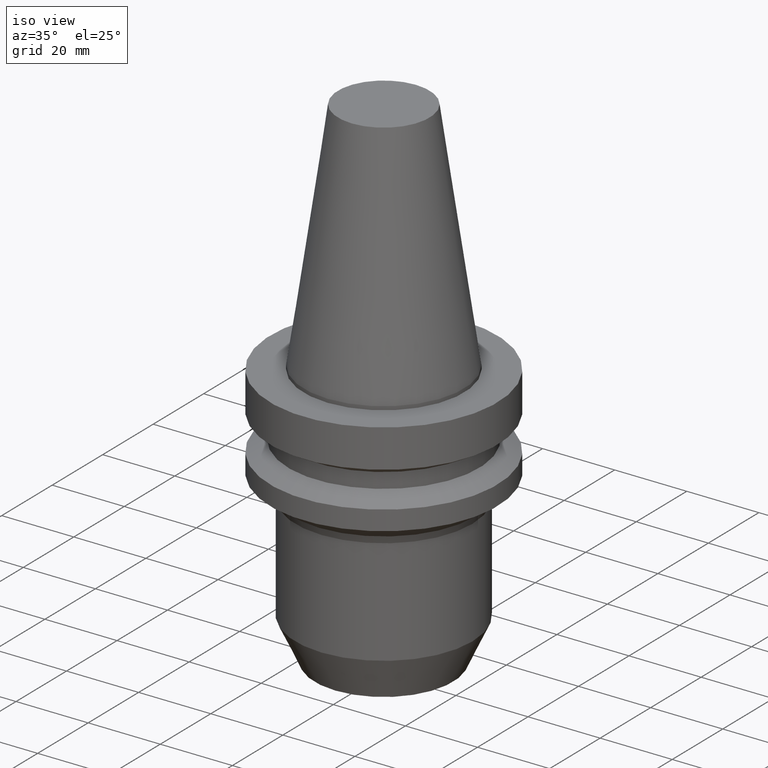
[diagram: clean part render]
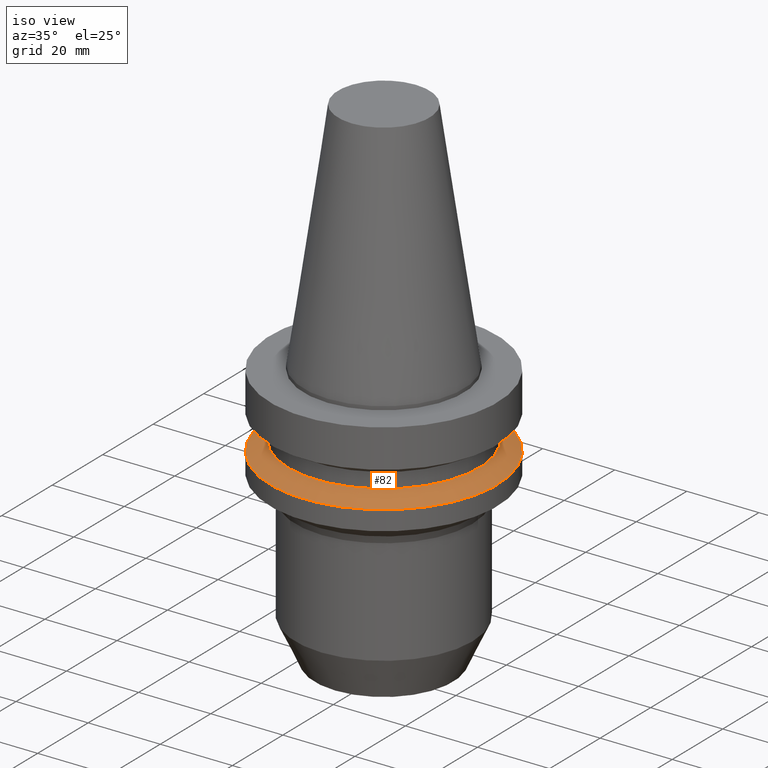
[diagram: same view with one face highlighted and labeled with its STEP entity id]
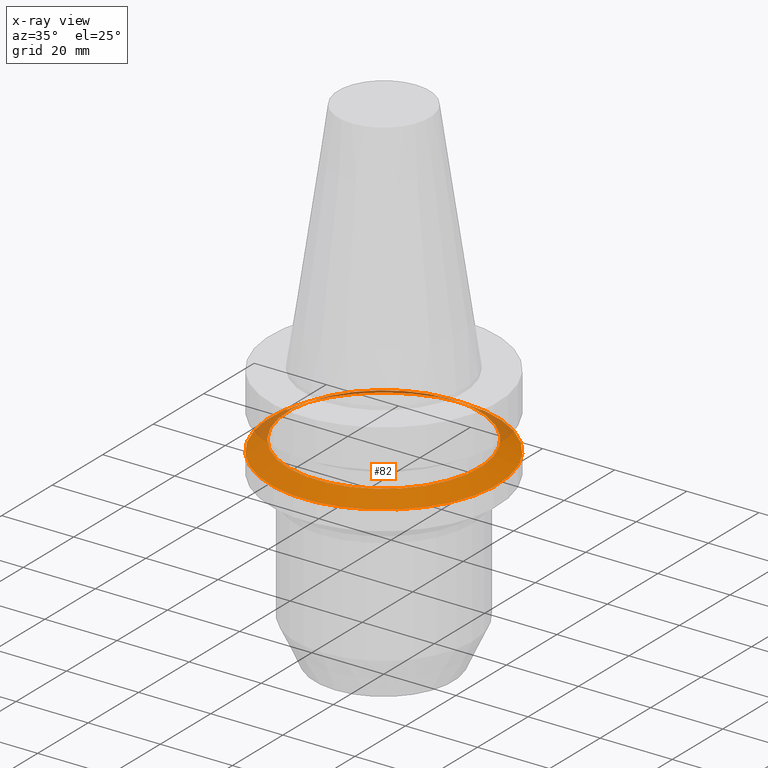
[diagram: x-ray of the same camera — body ghosted, the highlighted face saturated]
A machine part, iso view. The second image highlights one B-rep face of the part: STEP entity #82.
The next image is the same camera in x-ray: the body ghosted, the highlighted face saturated — about 12% of this face is hidden behind the body in this view.
In plain terms, the highlighted conical surface has half-angle 60 deg.
Its self-contained STEP definition (entity closure, byte-faithful):
#82=ADVANCED_FACE('',(#114,#115),#116,.T.);
#114=FACE_BOUND('',#166,.T.);
#115=FACE_BOUND('',#167,.T.);
#116=CONICAL_SURFACE('',#168,29.0000000000096,1.04719755119635);
#166=EDGE_LOOP('',(#232));
#167=EDGE_LOOP('',(#233));
#168=AXIS2_PLACEMENT_3D('',#234,#235,#236);
#232=ORIENTED_EDGE('',*,*,#293,.F.);
#233=ORIENTED_EDGE('',*,*,#292,.T.);
#234=CARTESIAN_POINT('',(1.23422829231085E-015,2.46845658462169E-015,-20.156477658214));
#235=DIRECTION('',(6.12323399573677E-017,1.22464679914735E-016,-1.0));
#236=DIRECTION('',(-1.23259516440783E-032,1.0,1.22464679914735E-016));
#292=EDGE_CURVE('',#315,#315,#316,.T.);
#293=EDGE_CURVE('',#317,#317,#318,.T.);
#315=VERTEX_POINT('',#349);
#316=CIRCLE('',#350,26.500000000009);
#317=VERTEX_POINT('',#351);
#318=CIRCLE('',#352,31.5000000000101);
#349=CARTESIAN_POINT('',(1.14584702241703E-015,26.500000000009,-18.7131019852388));
#350=AXIS2_PLACEMENT_3D('',#389,#390,#391);
#351=CARTESIAN_POINT('',(1.32260956220466E-015,31.5000000000101,-21.5998533311892));
#352=AXIS2_PLACEMENT_3D('',#392,#393,#394);
#389=CARTESIAN_POINT('',(1.14584702241703E-015,2.29169404483407E-015,-18.7131019852388));
#390=DIRECTION('',(6.12323399573677E-017,1.22464679914735E-016,-1.0));
#391=DIRECTION('',(-1.23259516440783E-032,1.0,1.22464679914735E-016));
#392=CARTESIAN_POINT('',(1.32260956220466E-015,2.64521912440932E-015,-21.5998533311892));
#393=DIRECTION('',(6.12323399573677E-017,1.22464679914735E-016,-1.0));
#394=DIRECTION('',(-1.23259516440783E-032,1.0,1.22464679914735E-016));